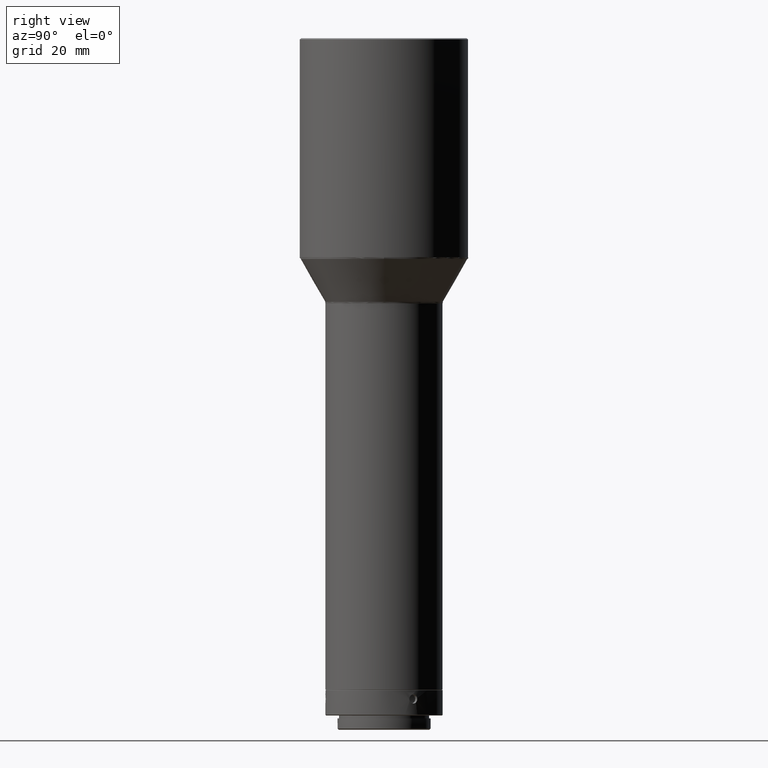
[diagram: clean part render]
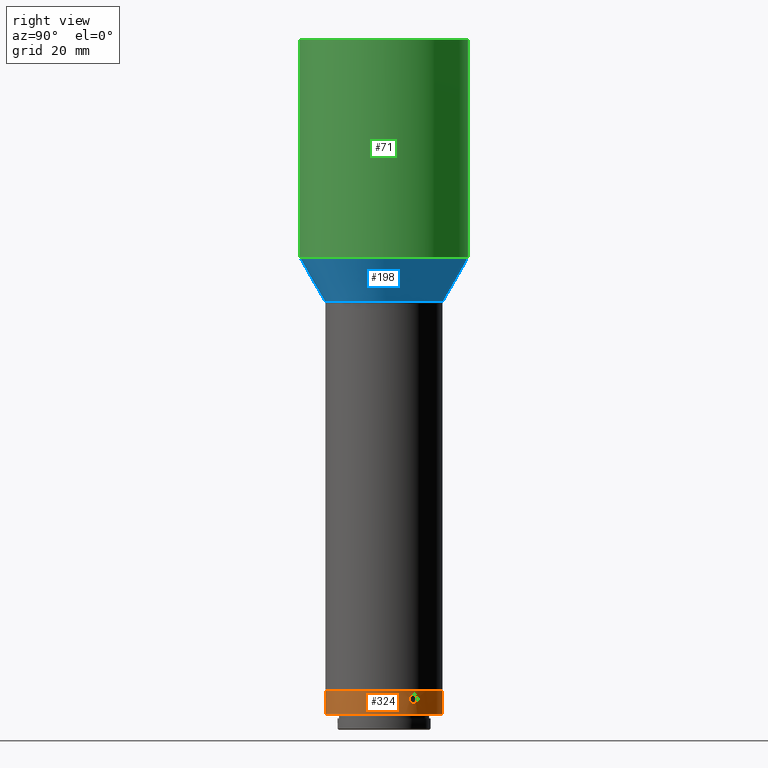
[diagram: same view with three faces highlighted in distinct colors, each labeled with its STEP entity id]
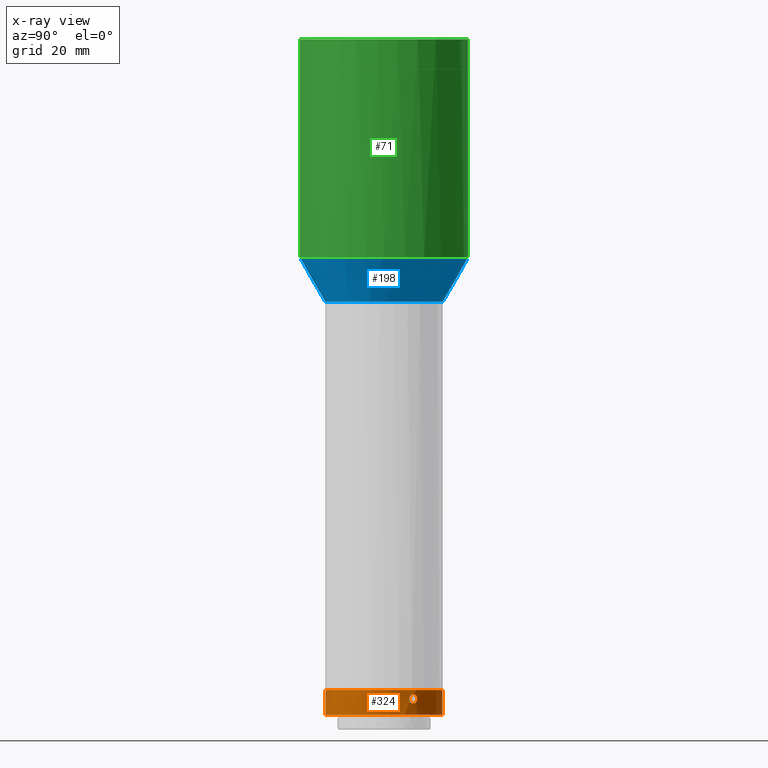
[diagram: x-ray of the same camera — body ghosted, the three highlighted faces saturated]
A machine part, right view with three faces highlighted in distinct colors.
The next image is the same camera in x-ray (body ghosted, the three faces saturated) — at least one of them is partly hidden behind the body in this view.
Their STEP definitions:

[orange] entity #324 — the highlighted cylindrical surface (bore or boss wall) has radius 16 mm, axis along (0, -0, -1).
#4 = CARTESIAN_POINT ( 'NONE',  ( 14.01719261983972764, 7.716297305763831105, -851.5214093831314131 ) ) ;
#11 = DIRECTION ( 'NONE',  ( -1.000000000000000000, 1.110223024625158759E-16, 0.000000000000000000 ) ) ;
#13 = B_SPLINE_CURVE_WITH_KNOTS ( 'NONE', 3,
 ( #592, #195, #830, #849, #123, #763, #755, #1029, #348, #365, #1008, #676, #516, #288, #115, #433, #747, #26, #681, #667, #921, #104, #180, #580, #743, #357, #913, #825, #35, #1021, #353, #190, #1003, #284 ),
 .UNSPECIFIED., .T., .F.,
 ( 4, 2, 2, 2, 2, 2, 2, 2, 2, 2, 2, 2, 2, 2, 2, 2, 4 ),
 ( 0.000000000000000000, 0.0004885900800826707560, 0.0009771801601653415121, 0.001465770240248012377, 0.001954360320330683024, 0.002442950400413353672, 0.002931540480496024753, 0.003420130560578695401, 0.003908720640661366048, 0.004397310720744037130, 0.004885900800826707344, 0.005374490880909378425, 0.005863080960992049506, 0.006351671041074719720, 0.006840261121157390801, 0.007328851201240061015, 0.007817441281322732097 ),
 .UNSPECIFIED. ) ;
#16 = CARTESIAN_POINT ( 'NONE',  ( 13.68986232014318460, 8.283133600535585117, -851.5206343380267526 ) ) ;
#24 = CARTESIAN_POINT ( 'NONE',  ( -1.525293474059434976E-15, -1.020331364945456598E-13, -847.9036269999999149 ) ) ;
#26 = CARTESIAN_POINT ( 'NONE',  ( -13.18905554671011515, 9.058080027566168368, -850.1384113926915234 ) ) ;
#28 = CARTESIAN_POINT ( 'NONE',  ( 14.16091045431017292, 7.449244769883883954, -849.2113434087438009 ) ) ;
#35 = CARTESIAN_POINT ( 'NONE',  ( -14.22412127540890658, 7.327212813183001217, -849.3025320789150783 ) ) ;
#43 = CARTESIAN_POINT ( 'NONE',  ( 13.18905534229551790, 9.058080325204882044, -850.1384138276864633 ) ) ;
#47 = ORIENTED_EDGE ( 'NONE', *, *, #578, .T. ) ;
#48 = VERTEX_POINT ( 'NONE', #534 ) ;
#50 = ORIENTED_EDGE ( 'NONE', *, *, #895, .F. ) ;
#60 = CARTESIAN_POINT ( 'NONE',  ( 13.18905534229546994, 9.058080325204944216, -850.3036269999995511 ) ) ;
#62 = CARTESIAN_POINT ( 'NONE',  ( 1.217374568861705031, -15.95374455314005679, -849.9759649588256707 ) ) ;
#69 = CARTESIAN_POINT ( 'NONE',  ( -0.1639587169544873824, -15.99999112047004601, -849.0537406580122024 ) ) ;
#72 = VERTEX_POINT ( 'NONE', #60 ) ;
#74 = CARTESIAN_POINT ( 'NONE',  ( -1.525293474059434976E-15, -1.022852214906503993E-13, -858.7036269999998694 ) ) ;
#75 = CARTESIAN_POINT ( 'NONE',  ( 0.7686038045270641161, -15.98194526075788424, -851.3027856874492727 ) ) ;
#79 = FACE_BOUND ( 'NONE', #1044, .T. ) ;
#81 = CARTESIAN_POINT ( 'NONE',  ( -1.091749787937548177, -15.96283334770935625, -850.9340599610806066 ) ) ;
#89 = EDGE_CURVE ( 'NONE', #883, #883, #156, .T. ) ;
#91 = CARTESIAN_POINT ( 'NONE',  ( 13.33016078387247028, 8.849866643192894955, -851.0722694721208654 ) ) ;
#96 = CARTESIAN_POINT ( 'NONE',  ( 14.22412169187527375, 7.327212005588910060, -851.3047212684355145 ) ) ;
#104 = CARTESIAN_POINT ( 'NONE',  ( -13.45646918731765318, 8.656602285382360762, -849.3044676517655489 ) ) ;
#108 = CARTESIAN_POINT ( 'NONE',  ( -15.99999999999998224, -1.002567796551454093E-13, -847.9036269999999149 ) ) ;
#115 = CARTESIAN_POINT ( 'NONE',  ( -13.27834430152497447, 8.926899724784520984, -850.9340599610812887 ) ) ;
#123 = CARTESIAN_POINT ( 'NONE',  ( -14.32928972504593013, 7.119324553767977903, -851.0722694721208654 ) ) ;
#144 = DIRECTION ( 'NONE',  ( -1.190632050506608759E-32, 2.334120334303136093E-17, 1.000000000000000000 ) ) ;
#145 = CARTESIAN_POINT ( 'NONE',  ( 0.3284729609324045230, -15.99733534382332856, -851.5206343380269800 ) ) ;
#146 = EDGE_LOOP ( 'NONE', ( #694 ) ) ;
#151 = CARTESIAN_POINT ( 'NONE',  ( -1.250000359964435814, -15.95109711274092135, -850.4688371602851475 ) ) ;
#155 = CARTESIAN_POINT ( 'NONE',  ( 1.249999999999994893, -15.95109714094935427, -850.3036270000000059 ) ) ;
#156 = B_SPLINE_CURVE_WITH_KNOTS ( 'NONE', 3,
 ( #983, #158, #793, #803, #1056, #75, #877, #145, #409, #725, #973, #311, #485, #407, #81, #547, #151, #468, #303, #885, #631, #478, #1060, #968, #69, #618, #239, #552, #787, #401, #636, #62, #797, #393 ),
 .UNSPECIFIED., .T., .F.,
 ( 4, 2, 2, 2, 2, 2, 2, 2, 2, 2, 2, 2, 2, 2, 2, 2, 4 ),
 ( 0.000000000000000000, 0.0004885900800826703224, 0.0009771801601653406447, 0.001465770240248010425, 0.001954360320330680422, 0.002442950400413350202, 0.002931540480496019115, 0.003420130560578688896, 0.003908720640661358242, 0.004397310720744027589, 0.004885900800826697803, 0.005374490880909367149, 0.005863080960992035628, 0.006351671041074704975, 0.006840261121157375189, 0.007328851201240044536, 0.007817441281322713015 ),
 .UNSPECIFIED. ) ;
#158 = CARTESIAN_POINT ( 'NONE',  ( 1.249999999999994893, -15.95109714094935782, -850.4688401723129800 ) ) ;
#177 = EDGE_CURVE ( 'NONE', #72, #72, #525, .T. ) ;
#180 = CARTESIAN_POINT ( 'NONE',  ( -13.53169043688302864, 8.539085809207085376, -849.2113434087444830 ) ) ;
#186 = CARTESIAN_POINT ( 'NONE',  ( 14.22507208325850492, 7.325343018768219139, -849.3044676517654352 ) ) ;
#190 = CARTESIAN_POINT ( 'NONE',  ( -14.42503535293758077, 6.922594974014682379, -849.9759649588251023 ) ) ;
#195 = CARTESIAN_POINT ( 'NONE',  ( -14.43905534229538112, 6.893016815743978398, -850.4688401723121842 ) ) ;
#209 = AXIS2_PLACEMENT_3D ( 'NONE', #786, #144, #982 ) ;
#214 = CARTESIAN_POINT ( 'NONE',  ( 13.32967610489947674, 8.850616283947957186, -849.5357175730570134 ) ) ;
#239 = CARTESIAN_POINT ( 'NONE',  ( 0.3260863791683186741, -15.99739355865334112, -849.0858445303855433 ) ) ;
#264 = CARTESIAN_POINT ( 'NONE',  ( 14.42507051476214386, 6.922521047928381854, -849.9762990091298889 ) ) ;
#284 = CARTESIAN_POINT ( 'NONE',  ( -14.43905534229535093, 6.893016815744045012, -850.3036269999994374 ) ) ;
#288 = CARTESIAN_POINT ( 'NONE',  ( -13.32967554154977385, 8.850617133123110492, -851.0715351575721570 ) ) ;
#289 = CARTESIAN_POINT ( 'NONE',  ( 13.69110602654744469, 8.281095867513798225, -849.0858445303856570 ) ) ;
#297 = CARTESIAN_POINT ( 'NONE',  ( 13.53190986809353902, 8.538755665722625565, -849.2109667794579764 ) ) ;
#303 = CARTESIAN_POINT ( 'NONE',  ( -1.217456171642263607, -15.95373804113025074, -849.9762990091292068 ) ) ;
#311 = CARTESIAN_POINT ( 'NONE',  ( -0.6288251960237797311, -15.98835551035434754, -851.3962867913675154 ) ) ;
#316 = EDGE_CURVE ( 'NONE', #48, #48, #657, .T. ) ;
#324 = ADVANCED_FACE ( 'NONE', ( #1041, #400, #392, #79, #890 ), #630, .T. ) ;
#327 = CARTESIAN_POINT ( 'NONE',  ( 13.53169001485361811, 8.539086481041683996, -851.3959101678653951 ) ) ;
#336 = CARTESIAN_POINT ( 'NONE',  ( 13.27821780386907591, 8.927087372111538244, -850.9336529028158793 ) ) ;
#348 = CARTESIAN_POINT ( 'NONE',  ( -13.93837824113995438, 7.858002952148548381, -851.5535133418325131 ) ) ;
#349 = CARTESIAN_POINT ( 'NONE',  ( 14.32928928275793012, 7.119325443295539735, -849.5349832886558943 ) ) ;
#353 = CARTESIAN_POINT ( 'NONE',  ( -14.37009367242129976, 7.035934476214912969, -849.6731924486600747 ) ) ;
#357 = CARTESIAN_POINT ( 'NONE',  ( -13.93752465240966742, 7.859516834987586797, -849.0535139458605727 ) ) ;
#365 = CARTESIAN_POINT ( 'NONE',  ( -13.77530345476364104, 8.140492191399463451, -851.5537400542947353 ) ) ;
#381 = CARTESIAN_POINT ( 'NONE',  ( 14.01833506430479126, 7.714202133825389218, -849.0866195713512070 ) ) ;
#392 = FACE_BOUND ( 'NONE', #931, .T. ) ;
#393 = CARTESIAN_POINT ( 'NONE',  ( 1.249999999999994893, -15.95109714094936137, -850.3036270000001196 ) ) ;
#400 = FACE_OUTER_BOUND ( 'NONE', #1017, .T. ) ;
#401 = CARTESIAN_POINT ( 'NONE',  ( 1.000020488598030388, -15.96914627303545942, -849.5357175730572408 ) ) ;
#407 = CARTESIAN_POINT ( 'NONE',  ( -1.000021505679873801, -15.96914620974788157, -851.0715351575718159 ) ) ;
#409 = CARTESIAN_POINT ( 'NONE',  ( 0.1639589409956552779, -15.99999112045789929, -851.5535133418330815 ) ) ;
#417 = CIRCLE ( 'NONE', #807, 15.99999999999998224 ) ;
#433 = CARTESIAN_POINT ( 'NONE',  ( -13.20766044061442557, 9.031150080229393140, -850.6312868880551150 ) ) ;
#466 = DIRECTION ( 'NONE',  ( 1.190632050506608759E-32, -2.334120334303136093E-17, -1.000000000000000000 ) ) ;
#468 = CARTESIAN_POINT ( 'NONE',  ( -1.249999640029637593, -15.95109716915826148, -850.1384113926910686 ) ) ;
#478 = CARTESIAN_POINT ( 'NONE',  ( -0.7686028959403500282, -15.98194530415097603, -849.3044676517653215 ) ) ;
#485 = CARTESIAN_POINT ( 'NONE',  ( -0.7665091101835012077, -15.98205673447986719, -851.3047212684354008 ) ) ;
#496 = CARTESIAN_POINT ( 'NONE',  ( 14.16073463471541771, 7.449599160880990389, -851.3962867913679702 ) ) ;
#501 = DIRECTION ( 'NONE',  ( -1.190632050506608759E-32, 2.334120334303136093E-17, 1.000000000000000000 ) ) ;
#516 = CARTESIAN_POINT ( 'NONE',  ( -13.45761258169208752, 8.654844728890600081, -851.3047212684352871 ) ) ;
#522 = CARTESIAN_POINT ( 'NONE',  ( 13.20766078407611133, 9.031149579125004934, -849.9759649588251023 ) ) ;
#525 = B_SPLINE_CURVE_WITH_KNOTS ( 'NONE', 3,
 ( #737, #574, #740, #336, #91, #732, #327, #16, #581, #643, #4, #496, #96, #993, #660, #985, #916, #999, #264, #910, #349, #186, #28, #381, #692, #1037, #289, #297, #1011, #214, #842, #522, #43, #953 ),
 .UNSPECIFIED., .T., .F.,
 ( 4, 2, 2, 2, 2, 2, 2, 2, 2, 2, 2, 2, 2, 2, 2, 2, 4 ),
 ( 0.000000000000000000, 0.0004885900800826676119, 0.0009771801601653352237, 0.001465770240248002836, 0.001954360320330670447, 0.002442950400413341962, 0.002931540480496014345, 0.003420130560578685860, 0.003908720640661358242, 0.004397310720744030191, 0.004885900800826701272, 0.005374490880909374088, 0.005863080960992046037, 0.006351671041074717985, 0.006840261121157389067, 0.007328851201240061883, 0.007817441281322733831 ),
 .UNSPECIFIED. ) ;
#534 = CARTESIAN_POINT ( 'NONE',  ( -1.525293474059434976E-15, 15.99999999999988276, -854.6036270000000741 ) ) ;
#547 = CARTESIAN_POINT ( 'NONE',  ( -1.217375174561485585, -15.95374450624569995, -850.6312868880540918 ) ) ;
#552 = CARTESIAN_POINT ( 'NONE',  ( 0.6288243891780481709, -15.98835554035178319, -849.2109667794583174 ) ) ;
#574 = CARTESIAN_POINT ( 'NONE',  ( 13.18905534229542731, 9.058080325205002836, -850.4688401723122979 ) ) ;
#577 = VERTEX_POINT ( 'NONE', #108 ) ;
#578 = EDGE_CURVE ( 'NONE', #584, #584, #13, .T. ) ;
#580 = CARTESIAN_POINT ( 'NONE',  ( -13.68986254997344076, 8.283133217537194781, -849.0866195713509796 ) ) ;
#581 = CARTESIAN_POINT ( 'NONE',  ( 13.77441930014386351, 8.141988168308973428, -851.5535133418327405 ) ) ;
#584 = VERTEX_POINT ( 'NONE', #996 ) ;
#592 = CARTESIAN_POINT ( 'NONE',  ( -14.43905534229535093, 6.893016815744045012, -850.3036269999994374 ) ) ;
#618 = CARTESIAN_POINT ( 'NONE',  ( 0.1622210856346482932, -16.00000883235258797, -849.0535139458605727 ) ) ;
#623 = DIRECTION ( 'NONE',  ( 0.000000000000000000, 1.000000000000000000, 0.000000000000000000 ) ) ;
#629 = AXIS2_PLACEMENT_3D ( 'NONE', #74, #466, #623 ) ;
#630 = CYLINDRICAL_SURFACE ( 'NONE', #629, 15.99999999999998224 ) ;
#631 = CARTESIAN_POINT ( 'NONE',  ( -0.9991279496755671730, -15.96919125869242961, -849.5349832886555532 ) ) ;
#636 = CARTESIAN_POINT ( 'NONE',  ( 1.091748840446003621, -15.96283341318644666, -849.6731924486608705 ) ) ;
#643 = CARTESIAN_POINT ( 'NONE',  ( 13.93752476444273825, 7.859516640964904433, -851.5537400542950763 ) ) ;
#657 = CIRCLE ( 'NONE', #209, 15.99999999999998224 ) ;
#660 = CARTESIAN_POINT ( 'NONE',  ( 14.37009408946231481, 7.035933622924472886, -850.9340599610812887 ) ) ;
#667 = CARTESIAN_POINT ( 'NONE',  ( -13.27821832064385532, 8.927086604496956568, -849.6735995635617655 ) ) ;
#676 = CARTESIAN_POINT ( 'NONE',  ( -13.53190943869201313, 8.538756349472990337, -851.3962867913678565 ) ) ;
#681 = CARTESIAN_POINT ( 'NONE',  ( -13.20761434311965488, 9.031216993201475418, -849.9762990091296615 ) ) ;
#692 = CARTESIAN_POINT ( 'NONE',  ( 13.93837812912999752, 7.858003146179775023, -849.0537406580123161 ) ) ;
#694 = ORIENTED_EDGE ( 'NONE', *, *, #316, .T. ) ;
#725 = CARTESIAN_POINT ( 'NONE',  ( -0.1622213096795239173, -16.00000883236473825, -851.5537400542948490 ) ) ;
#732 = CARTESIAN_POINT ( 'NONE',  ( 13.45646869544484225, 8.656603050544882549, -851.3027856874491590 ) ) ;
#737 = CARTESIAN_POINT ( 'NONE',  ( 13.18905534229547349, 9.058080325204942440, -850.3036269999994374 ) ) ;
#740 = CARTESIAN_POINT ( 'NONE',  ( 13.20761398697391620, 9.031217513015047160, -850.6309527820236553 ) ) ;
#743 = CARTESIAN_POINT ( 'NONE',  ( -13.77441941217485777, 8.141987974289881080, -849.0537406580119750 ) ) ;
#747 = CARTESIAN_POINT ( 'NONE',  ( -13.18905513788395467, 9.058080622839193907, -850.4688371602860570 ) ) ;
#755 = CARTESIAN_POINT ( 'NONE',  ( -14.16091082512129695, 7.449244068478394709, -851.3959101678650541 ) ) ;
#763 = CARTESIAN_POINT ( 'NONE',  ( -14.22507249997227952, 7.325342210212610006, -851.3027856874487043 ) ) ;
#767 = ORIENTED_EDGE ( 'NONE', *, *, #177, .T. ) ;
#770 = EDGE_LOOP ( 'NONE', ( #934 ) ) ;
#786 = CARTESIAN_POINT ( 'NONE',  ( -1.525293474059434976E-15, -1.021895225569439800E-13, -854.6036270000000741 ) ) ;
#787 = CARTESIAN_POINT ( 'NONE',  ( 0.7665082025535790988, -15.98205677760644861, -849.3025320789155330 ) ) ;
#793 = CARTESIAN_POINT ( 'NONE',  ( 1.217456799887070451, -15.95373799260576142, -850.6309527820241101 ) ) ;
#797 = CARTESIAN_POINT ( 'NONE',  ( 1.249999999999994893, -15.95109714094936137, -850.1384138276874864 ) ) ;
#803 = CARTESIAN_POINT ( 'NONE',  ( 1.091975544117259167, -15.96281762118936420, -850.9336529028153109 ) ) ;
#807 = AXIS2_PLACEMENT_3D ( 'NONE', #24, #501, #11 ) ;
#825 = CARTESIAN_POINT ( 'NONE',  ( -14.16073425727099711, 7.449599874628800578, -849.2109667794579764 ) ) ;
#830 = CARTESIAN_POINT ( 'NONE',  ( -14.42507078686103128, 6.922520479590343889, -850.6309527820238827 ) ) ;
#842 = CARTESIAN_POINT ( 'NONE',  ( 13.27834483197565341, 8.926898936971184639, -849.6731924486599610 ) ) ;
#849 = CARTESIAN_POINT ( 'NONE',  ( -14.37019334798651293, 7.035730249077436937, -850.9336529028154246 ) ) ;
#877 = CARTESIAN_POINT ( 'NONE',  ( 0.6292208102673153558, -15.98833054952046595, -851.3959101678655088 ) ) ;
#883 = VERTEX_POINT ( 'NONE', #155 ) ;
#885 = CARTESIAN_POINT ( 'NONE',  ( -1.091974620955969089, -15.96281768492218589, -849.6735995635613108 ) ) ;
#890 = FACE_BOUND ( 'NONE', #770, .T. ) ;
#895 = EDGE_CURVE ( 'NONE', #577, #577, #417, .T. ) ;
#910 = CARTESIAN_POINT ( 'NONE',  ( 14.37019294160018390, 7.035731080424821648, -849.6735995635619929 ) ) ;
#913 = CARTESIAN_POINT ( 'NONE',  ( -14.01719240571513403, 7.716297691139186732, -849.0858445303855433 ) ) ;
#916 = CARTESIAN_POINT ( 'NONE',  ( 14.43905549784842179, 6.893016489901346411, -850.4688371602859434 ) ) ;
#921 = CARTESIAN_POINT ( 'NONE',  ( -13.33016133308195528, 8.849865815396480428, -849.5349832886557806 ) ) ;
#931 = EDGE_LOOP ( 'NONE', ( #47 ) ) ;
#934 = ORIENTED_EDGE ( 'NONE', *, *, #89, .T. ) ;
#953 = CARTESIAN_POINT ( 'NONE',  ( 13.18905534229547349, 9.058080325204942440, -850.3036269999994374 ) ) ;
#968 = CARTESIAN_POINT ( 'NONE',  ( -0.3284725143307034578, -15.99733535136297213, -849.0866195713507523 ) ) ;
#973 = CARTESIAN_POINT ( 'NONE',  ( -0.3260868199752848251, -15.99739355140301988, -851.5214093831310720 ) ) ;
#982 = DIRECTION ( 'NONE',  ( 0.000000000000000000, 1.000000000000000000, 0.000000000000000000 ) ) ;
#983 = CARTESIAN_POINT ( 'NONE',  ( 1.249999999999994893, -15.95109714094936137, -850.3036270000001196 ) ) ;
#985 = CARTESIAN_POINT ( 'NONE',  ( 14.42503561517585808, 6.922594426015945324, -850.6312868880551150 ) ) ;
#993 = CARTESIAN_POINT ( 'NONE',  ( 14.32969704722941806, 7.118529076624414031, -851.0715351575721570 ) ) ;
#996 = CARTESIAN_POINT ( 'NONE',  ( -14.43905534229535270, 6.893016815744045012, -850.3036269999995511 ) ) ;
#999 = CARTESIAN_POINT ( 'NONE',  ( 14.43905518673992816, 6.893017141591708530, -850.1384113926917507 ) ) ;
#1003 = CARTESIAN_POINT ( 'NONE',  ( -14.43905534229532073, 6.893016815744113401, -850.1384138276865770 ) ) ;
#1008 = CARTESIAN_POINT ( 'NONE',  ( -13.69110579986489995, 8.281096245638817521, -851.5214093831311857 ) ) ;
#1011 = CARTESIAN_POINT ( 'NONE',  ( 13.45761307285590469, 8.654843964423099223, -849.3025320789148509 ) ) ;
#1017 = EDGE_LOOP ( 'NONE', ( #50 ) ) ;
#1021 = CARTESIAN_POINT ( 'NONE',  ( -14.32969659349702418, 7.118529989087151399, -849.5357175730570134 ) ) ;
#1029 = CARTESIAN_POINT ( 'NONE',  ( -14.01833528107599314, 7.714201743287355306, -851.5206343380267526 ) ) ;
#1037 = CARTESIAN_POINT ( 'NONE',  ( 13.77530356677568868, 8.140491997364634358, -849.0535139458605727 ) ) ;
#1041 = FACE_OUTER_BOUND ( 'NONE', #146, .T. ) ;
#1044 = EDGE_LOOP ( 'NONE', ( #767 ) ) ;
#1056 = CARTESIAN_POINT ( 'NONE',  ( 0.9991289411731864023, -15.96919119696127076, -851.0722694721213202 ) ) ;
#1060 = CARTESIAN_POINT ( 'NONE',  ( -0.6292200174265540902, -15.98833057909136102, -849.2113434087436872 ) ) ;

[blue] entity #198 — the highlighted conical surface has half-angle 30 deg.
#29 = EDGE_LOOP ( 'NONE', ( #751 ) ) ;
#198 = ADVANCED_FACE ( 'NONE', ( #528, #851 ), #420, .T. ) ;
#203 = DIRECTION ( 'NONE',  ( -1.000000000000000000, -5.551115123125786400E-17, 0.000000000000000000 ) ) ;
#267 = CARTESIAN_POINT ( 'NONE',  ( -22.86602540378439841, -2.033015060078085389E-14, -730.2320508075688394 ) ) ;
#326 = CIRCLE ( 'NONE', #757, 16.13397459621553764 ) ;
#354 = DIRECTION ( 'NONE',  ( -0.000000000000000000, 0.000000000000000000, 1.000000000000000000 ) ) ;
#402 = DIRECTION ( 'NONE',  ( -1.000000000000000000, -5.551115123125775307E-17, 0.000000000000000000 ) ) ;
#420 = CONICAL_SURFACE ( 'NONE', #1025, 22.86602540378439130, 0.5235987755983003700 ) ;
#491 = AXIS2_PLACEMENT_3D ( 'NONE', #1015, #597, #203 ) ;
#528 = FACE_BOUND ( 'NONE', #703, .T. ) ;
#542 = EDGE_CURVE ( 'NONE', #638, #638, #326, .T. ) ;
#587 = CARTESIAN_POINT ( 'NONE',  ( -6.938893903907228378E-15, -1.906083120653359364E-14, -730.2320508075688394 ) ) ;
#597 = DIRECTION ( 'NONE',  ( -5.605564082487980297E-34, -2.334120334303111441E-17, -1.000000000000000000 ) ) ;
#638 = VERTEX_POINT ( 'NONE', #827 ) ;
#645 = EDGE_CURVE ( 'NONE', #1001, #1001, #871, .T. ) ;
#678 = DIRECTION ( 'NONE',  ( 1.000000000000000000, 0.000000000000000000, 0.000000000000000000 ) ) ;
#703 = EDGE_LOOP ( 'NONE', ( #1042 ) ) ;
#751 = ORIENTED_EDGE ( 'NONE', *, *, #645, .T. ) ;
#757 = AXIS2_PLACEMENT_3D ( 'NONE', #903, #878, #402 ) ;
#827 = CARTESIAN_POINT ( 'NONE',  ( -16.13397459621554475, -2.022861107083409908E-14, -741.8923048454131504 ) ) ;
#851 = FACE_OUTER_BOUND ( 'NONE', #29, .T. ) ;
#871 = CIRCLE ( 'NONE', #491, 22.86602540378439130 ) ;
#878 = DIRECTION ( 'NONE',  ( 5.605564082487980297E-34, 2.334120334303111441E-17, 1.000000000000000000 ) ) ;
#903 = CARTESIAN_POINT ( 'NONE',  ( -6.639475585231606770E-15, -1.933299556706231038E-14, -741.8923048454131504 ) ) ;
#1001 = VERTEX_POINT ( 'NONE', #267 ) ;
#1015 = CARTESIAN_POINT ( 'NONE',  ( -6.639475585231606770E-15, -1.906083120653359364E-14, -730.2320508075688394 ) ) ;
#1025 = AXIS2_PLACEMENT_3D ( 'NONE', #587, #354, #678 ) ;
#1042 = ORIENTED_EDGE ( 'NONE', *, *, #542, .T. ) ;

[green] entity #71 — the highlighted cylindrical surface (bore or boss wall) has radius 23 mm, axis along (0, 0, 1).
#17 = EDGE_CURVE ( 'NONE', #227, #227, #710, .T. ) ;
#37 = DIRECTION ( 'NONE',  ( -5.605564082487980297E-34, -2.334120334303111441E-17, -1.000000000000000000 ) ) ;
#49 = DIRECTION ( 'NONE',  ( 0.000000000000000000, -1.000000000000000000, 0.000000000000000000 ) ) ;
#71 = ADVANCED_FACE ( 'NONE', ( #947, #207 ), #523, .T. ) ;
#118 = CARTESIAN_POINT ( 'NONE',  ( -6.639475585231606770E-15, -1.766194502186925708E-14, -670.2999999999998408 ) ) ;
#125 = CARTESIAN_POINT ( 'NONE',  ( -6.639475585231606770E-15, -1.904916060486207909E-14, -729.7320508075687258 ) ) ;
#207 = FACE_OUTER_BOUND ( 'NONE', #873, .T. ) ;
#222 = CARTESIAN_POINT ( 'NONE',  ( -6.639475585231606770E-15, -23.00000000000001776, -670.2999999999998408 ) ) ;
#227 = VERTEX_POINT ( 'NONE', #613 ) ;
#229 = DIRECTION ( 'NONE',  ( 0.000000000000000000, -1.000000000000000000, 0.000000000000000000 ) ) ;
#248 = EDGE_CURVE ( 'NONE', #952, #952, #714, .T. ) ;
#251 = AXIS2_PLACEMENT_3D ( 'NONE', #1050, #318, #229 ) ;
#318 = DIRECTION ( 'NONE',  ( 5.605564082487980297E-34, 2.334120334303111441E-17, 1.000000000000000000 ) ) ;
#523 = CYLINDRICAL_SURFACE ( 'NONE', #251, 23.00000000000000000 ) ;
#535 = DIRECTION ( 'NONE',  ( -5.605564082487980297E-34, -2.334120334303111441E-17, -1.000000000000000000 ) ) ;
#570 = AXIS2_PLACEMENT_3D ( 'NONE', #118, #535, #49 ) ;
#601 = AXIS2_PLACEMENT_3D ( 'NONE', #125, #37, #940 ) ;
#613 = CARTESIAN_POINT ( 'NONE',  ( 22.99999999999999289, -1.777240412654314907E-14, -729.7320508075687258 ) ) ;
#710 = CIRCLE ( 'NONE', #601, 23.00000000000000000 ) ;
#714 = CIRCLE ( 'NONE', #570, 23.00000000000000000 ) ;
#788 = EDGE_LOOP ( 'NONE', ( #867 ) ) ;
#867 = ORIENTED_EDGE ( 'NONE', *, *, #17, .F. ) ;
#873 = EDGE_LOOP ( 'NONE', ( #1033 ) ) ;
#940 = DIRECTION ( 'NONE',  ( 1.000000000000000000, 5.551115123125787632E-17, 0.000000000000000000 ) ) ;
#947 = FACE_OUTER_BOUND ( 'NONE', #788, .T. ) ;
#952 = VERTEX_POINT ( 'NONE', #222 ) ;
#1033 = ORIENTED_EDGE ( 'NONE', *, *, #248, .T. ) ;
#1050 = CARTESIAN_POINT ( 'NONE',  ( -6.639475585231606770E-15, -1.765494266086634835E-14, -669.9999999999998863 ) ) ;